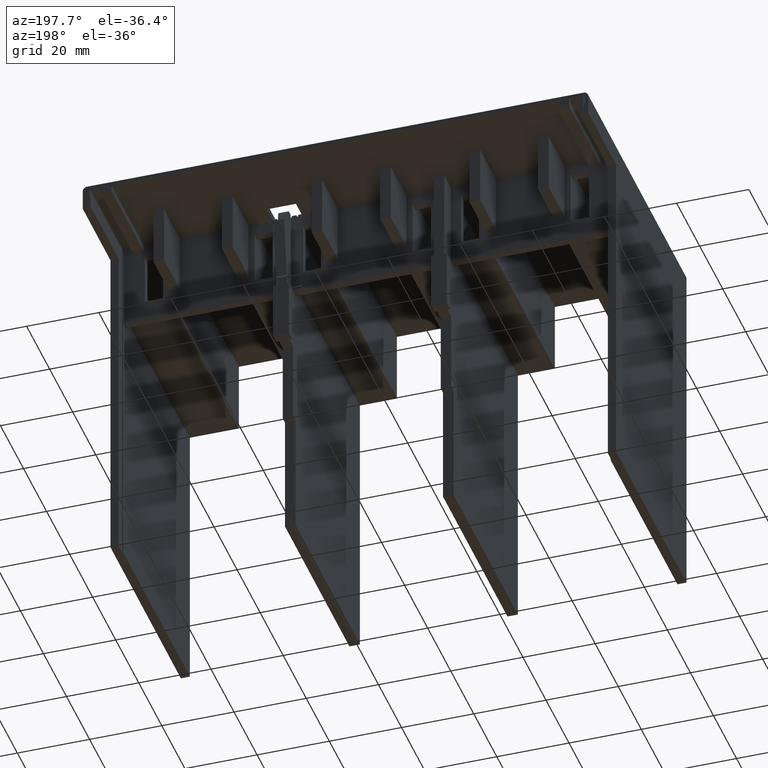
[diagram: clean part render]
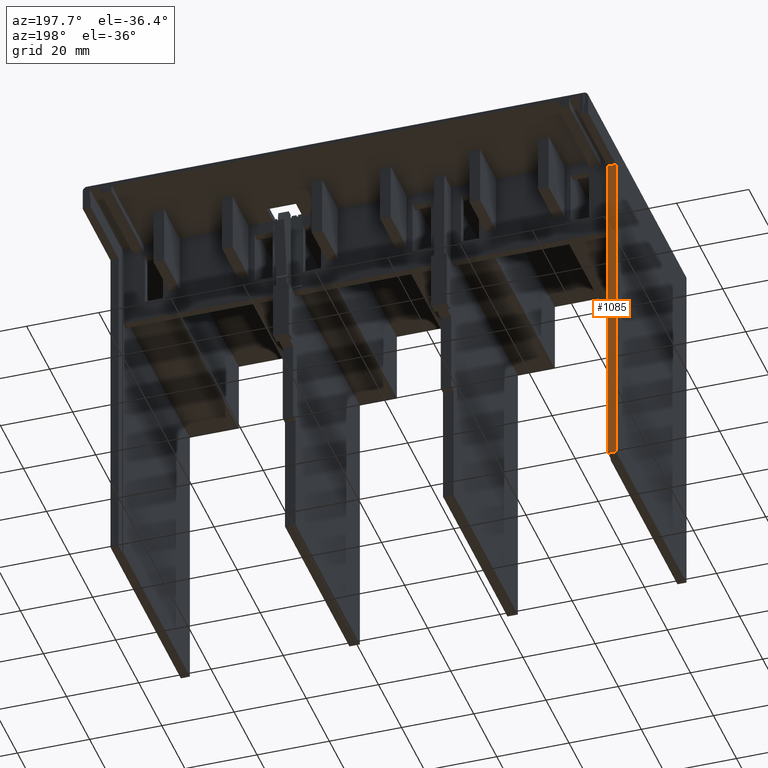
[diagram: same view with one face highlighted and labeled with its STEP entity id]
A machine part, auxiliary view. The second image highlights one B-rep face of the part: STEP entity #1085.
In plain terms, the highlighted planar face has unit normal (-0, 1, 0).
Its self-contained STEP definition (entity closure, byte-faithful):
#1085 = ADVANCED_FACE( '', ( #2388 ), #2389, .T. );
#2388 = FACE_OUTER_BOUND( '', #3898, .T. );
#2389 = PLANE( '', #3899 );
#3898 = EDGE_LOOP( '', ( #7319, #7320, #7321, #7322 ) );
#3899 = AXIS2_PLACEMENT_3D( '', #7323, #7324, #7325 );
#7319 = ORIENTED_EDGE( '', *, *, #10996, .F. );
#7320 = ORIENTED_EDGE( '', *, *, #10997, .F. );
#7321 = ORIENTED_EDGE( '', *, *, #10470, .F. );
#7322 = ORIENTED_EDGE( '', *, *, #10178, .F. );
#7323 = CARTESIAN_POINT( '', ( 100.000000000000, -24.1000000000000, -6.92000000000000 ) );
#7324 = DIRECTION( '', ( -0.000000000000000, 1.00000000000000, 0.000000000000000 ) );
#7325 = DIRECTION( '', ( 0.000000000000000, -0.000000000000000, 1.00000000000000 ) );
#10178 = EDGE_CURVE( '', #12714, #12716, #12717, .T. );
#10470 = EDGE_CURVE( '', #12716, #13158, #13159, .T. );
#10996 = EDGE_CURVE( '', #13899, #12714, #13900, .T. );
#10997 = EDGE_CURVE( '', #13158, #13899, #13901, .T. );
#12714 = VERTEX_POINT( '', #16285 );
#12716 = VERTEX_POINT( '', #16288 );
#12717 = LINE( '', #16289, #16290 );
#13158 = VERTEX_POINT( '', #16950 );
#13159 = LINE( '', #16951, #16952 );
#13899 = VERTEX_POINT( '', #18069 );
#13900 = LINE( '', #18070, #18071 );
#13901 = LINE( '', #18072, #18073 );
#16285 = CARTESIAN_POINT( '', ( -67.7250000000000, -24.1000000000000, -6.92000000000000 ) );
#16288 = CARTESIAN_POINT( '', ( -70.0000000000000, -24.1000000000000, -6.92000000000000 ) );
#16289 = CARTESIAN_POINT( '', ( 100.000000000000, -24.1000000000000, -6.92000000000000 ) );
#16290 = VECTOR( '', #19561, 1000.00000000000 );
#16950 = CARTESIAN_POINT( '', ( -70.0000000000000, -24.1000000000000, -101.000000000000 ) );
#16951 = CARTESIAN_POINT( '', ( -70.0000000000000, -24.1000000000000, -101.000000000000 ) );
#16952 = VECTOR( '', #19781, 1000.00000000000 );
#18069 = CARTESIAN_POINT( '', ( -67.7250000000000, -24.1000000000000, -101.000000000000 ) );
#18070 = CARTESIAN_POINT( '', ( -67.7250000000000, -24.1000000000000, -6.92000000000000 ) );
#18071 = VECTOR( '', #20162, 1000.00000000000 );
#18072 = CARTESIAN_POINT( '', ( -67.5000000000000, -24.1000000000000, -101.000000000000 ) );
#18073 = VECTOR( '', #20163, 1000.00000000000 );
#19561 = DIRECTION( '', ( -1.00000000000000, -0.000000000000000, -0.000000000000000 ) );
#19781 = DIRECTION( '', ( 0.000000000000000, 0.000000000000000, -1.00000000000000 ) );
#20162 = DIRECTION( '', ( 0.000000000000000, 0.000000000000000, 1.00000000000000 ) );
#20163 = DIRECTION( '', ( 1.00000000000000, 0.000000000000000, 0.000000000000000 ) );